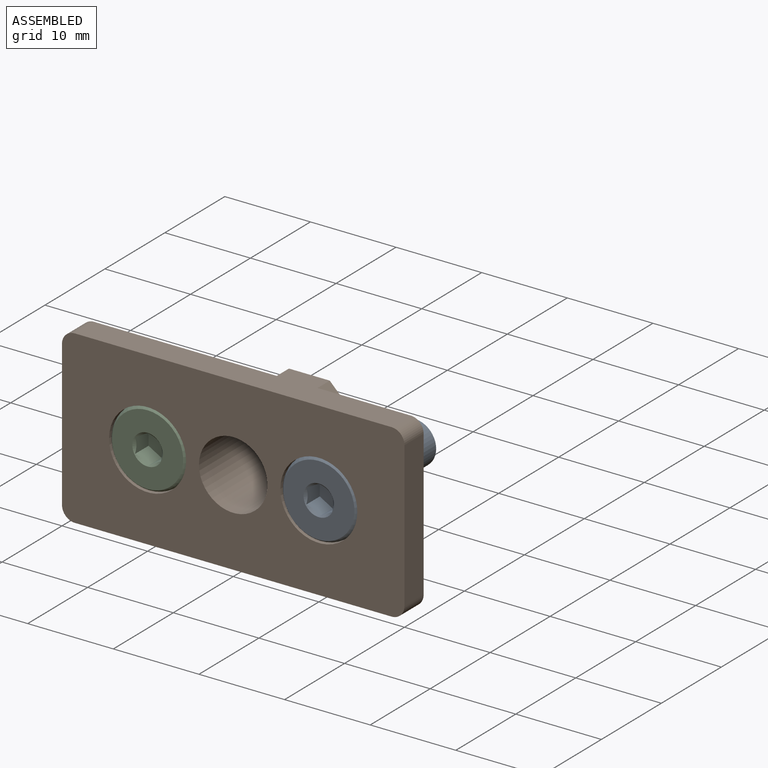
[diagram: assembled view]
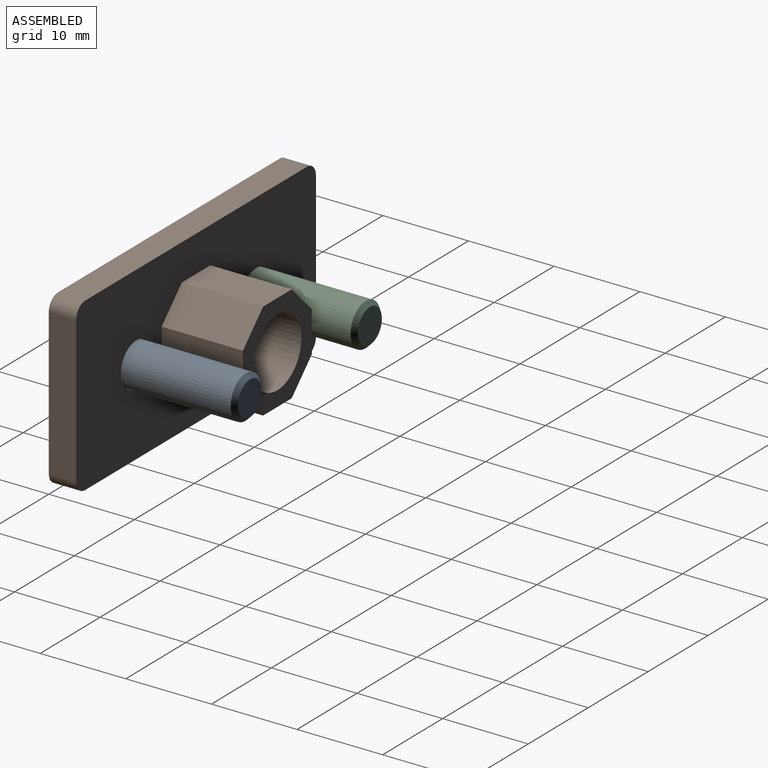
[diagram: assembled view, second angle]
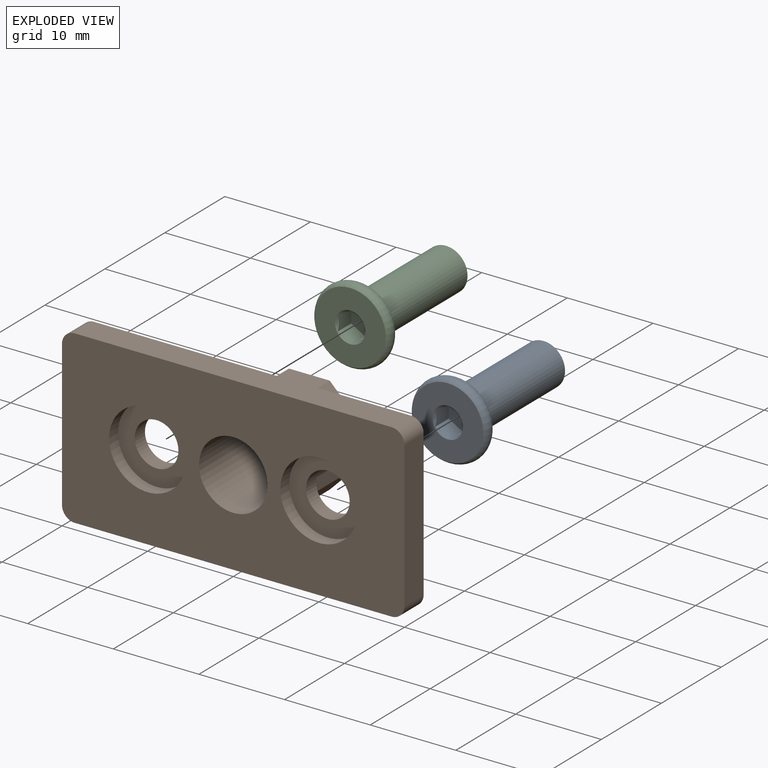
[diagram: exploded view]
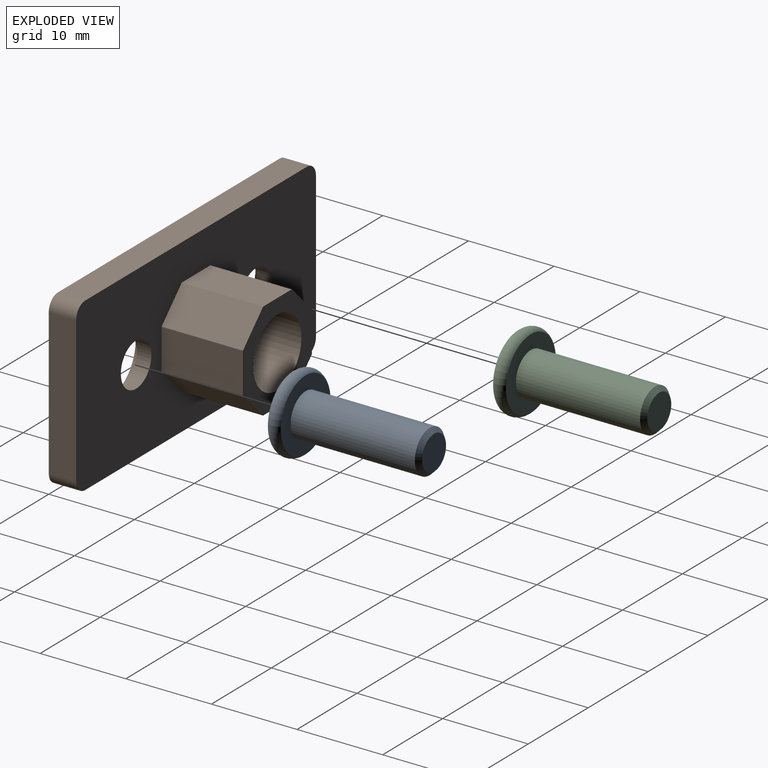
[diagram: exploded view, second angle]
ASSEMBLY  parts=3 mates=2
PART A: 14 faces, bbox 16.8x9.7x9.7 mm
  f0: cone r=1.78mm half-angle=45deg, axis (-1,0,0), area 3.1mm2, adj f5,f8,f9,f10,f11,f12,f13
  f1: torus R=3.5mm, axis (1,0,0), area 46.7mm2, adj f5,f6
  f2: cone r=2mm half-angle=45deg, axis (-1,0,0), area 10mm2, adj f3,f4
  f3: cylinder r=2.5mm len=14.5mm, axis (1,0,0), area 227.8mm2, adj f2,f6
  f4: plane 4x4mm, normal (1,0,0), area 12.6mm2, adj f2
  f5: plane 8.32x8.32mm, normal (-1,0,0), area 44.4mm2, adj f0,f1
  f6: plane 8.32x8.32mm, normal (1,0,0), area 34.8mm2, adj f1,f3
  f7: plane 3.46x3mm, normal (-1,0,0), area 7.8mm2, adj f8,f9,f10,f11,f12,f13
  f8: plane 2.25x1.5mm, normal (0,-0.5,-0.87), area 3.6mm2, adj f0,f7,f9,f13
  f9: plane 2.25x1.73mm, normal (0,-1,0), area 3.6mm2, adj f0,f7,f8,f10
  f10: plane 2.25x1.5mm, normal (0,-0.5,0.87), area 3.6mm2, adj f0,f7,f9,f11
  f11: plane 2.25x1.5mm, normal (0,0.5,0.87), area 3.6mm2, adj f0,f7,f10,f12
  f12: plane 2.25x1.73mm, normal (0,1,0), area 3.6mm2, adj f0,f7,f11,f13
  f13: plane 2.25x1.5mm, normal (0,0.5,-0.87), area 3.6mm2, adj f0,f7,f8,f12
PART B: 26 faces, bbox 40x20x12.7 mm
  f0: cylinder r=4mm len=12.7mm, axis (0,0,1), area 319.2mm2, adj f7,f21
  f1: cylinder r=4.5mm len=9mm, axis (0,0,-1), area 42.4mm2, adj f7,f12
  f2: cylinder r=4.5mm len=9mm, axis (0,0,-1), area 42.4mm2, adj f7,f11
  f3: cylinder r=2.55mm len=5.1mm, axis (0,0,1), area 27.2mm2, adj f5,f11
  f4: cylinder r=2.55mm len=5.1mm, axis (0,0,1), area 27.2mm2, adj f5,f12
  f5: plane 40x20mm, normal (0,0,1), area 647.7mm2, adj f3,f4,f6,f8,f9,f10,f13,f14
  f6: plane 17x3.2mm, normal (-1,0,0), area 54.4mm2, adj f5,f7,f24,f25
  f7: plane 40x20mm, normal (0,0,-1), area 620.6mm2, adj f0,f1,f2,f6,f8,f9,f10,f22
  f8: plane 17x3.2mm, normal (1,0,0), area 54.4mm2, adj f5,f7,f22,f23
  f9: plane 37x3.2mm, normal (0,-1,0), area 118.4mm2, adj f5,f7,f23,f25
  f10: plane 37x3.2mm, normal (0,1,0), area 118.4mm2, adj f5,f7,f22,f24
  f11: plane 9x9mm, normal (0,0,-1), area 43.2mm2, adj f2,f3
  f12: plane 9x9mm, normal (0,0,-1), area 43.2mm2, adj f1,f4
  f13: plane 9.5x4.76mm, normal (0,1,0), area 45.3mm2, adj f5,f14,f20,f21
  f14: plane 9.5x3.37mm, normal (-0.71,0.71,0), area 45.3mm2, adj f5,f13,f15,f21
  f15: plane 9.5x4.76mm, normal (-1,0,0), area 45.3mm2, adj f5,f14,f16,f21
  f16: plane 9.5x3.37mm, normal (-0.71,-0.71,0), area 45.3mm2, adj f5,f15,f17,f21
  f17: plane 9.5x4.76mm, normal (0,-1,0), area 45.3mm2, adj f5,f16,f18,f21
  f18: plane 9.5x3.37mm, normal (0.71,-0.71,0), area 45.3mm2, adj f5,f17,f19,f21
  f19: plane 9.5x4.76mm, normal (1,0,0), area 45.3mm2, adj f5,f18,f20,f21
  f20: plane 9.5x3.37mm, normal (0.71,0.71,0), area 45.3mm2, adj f5,f13,f19,f21
  f21: plane 11.5x11.5mm, normal (0,0,1), area 59.3mm2, adj f0,f13,f14,f15,f16,f17,f18,f19
  f22: cylinder r=1.5mm len=3.2mm, axis (0,0,1), area 7.5mm2, adj f5,f7,f8,f10
  f23: cylinder r=1.5mm len=3.2mm, axis (0,0,-1), area 7.5mm2, adj f5,f7,f8,f9
  f24: cylinder r=1.5mm len=3.2mm, axis (0,0,-1), area 7.5mm2, adj f5,f6,f7,f10
  f25: cylinder r=1.5mm len=3.2mm, axis (0,0,1), area 7.5mm2, adj f5,f6,f7,f9
PART C: same geometry as A
PLACE A rot(axis=(0.71,0.71,0),180deg) t=(10,9.5,0)mm
PLACE B rot(axis=(-1,0,0),90deg) t=(0,1.6,-10)mm
PLACE C rot(axis=(0.71,0.71,0),180deg) t=(-10,9.5,0)mm
MATE fastened A.f0 <-> B.f2  axis (0,1,0) through (10,1.5,0)mm
MATE fastened C.f0 <-> B.f4  axis (0,1,0) through (-10,1.5,0)mm
